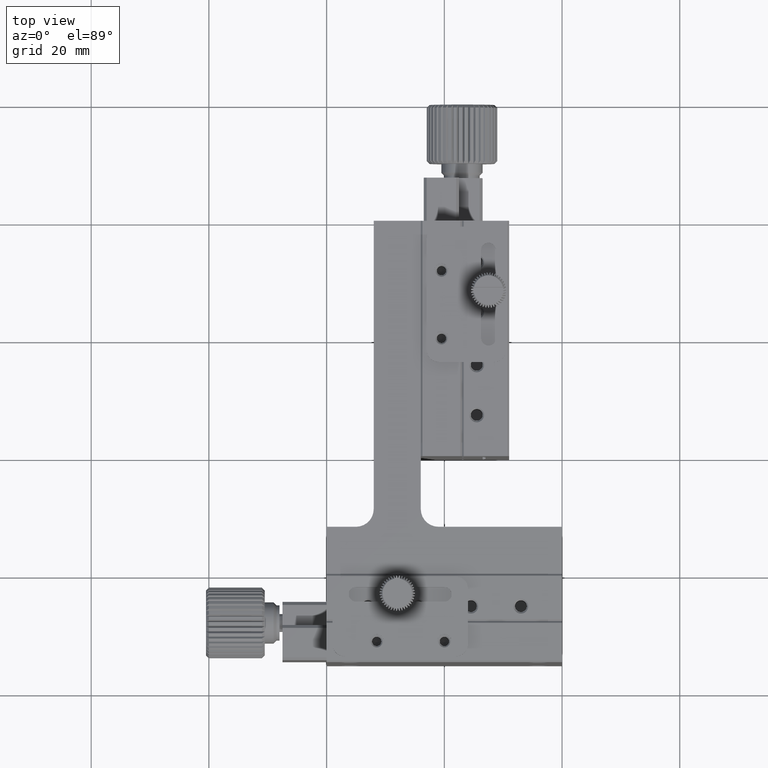
[diagram: clean part render]
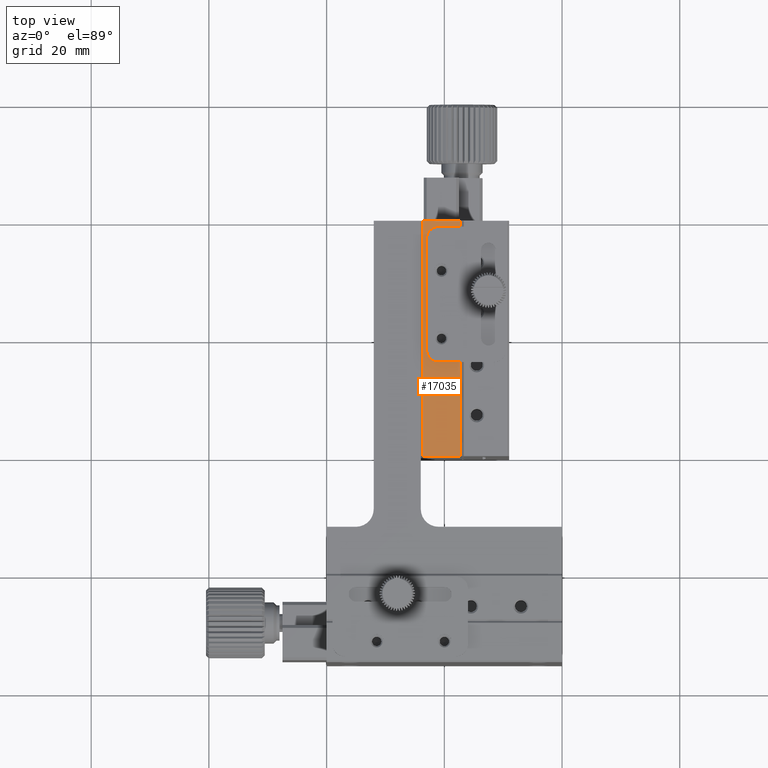
[diagram: same view with one face highlighted and labeled with its STEP entity id]
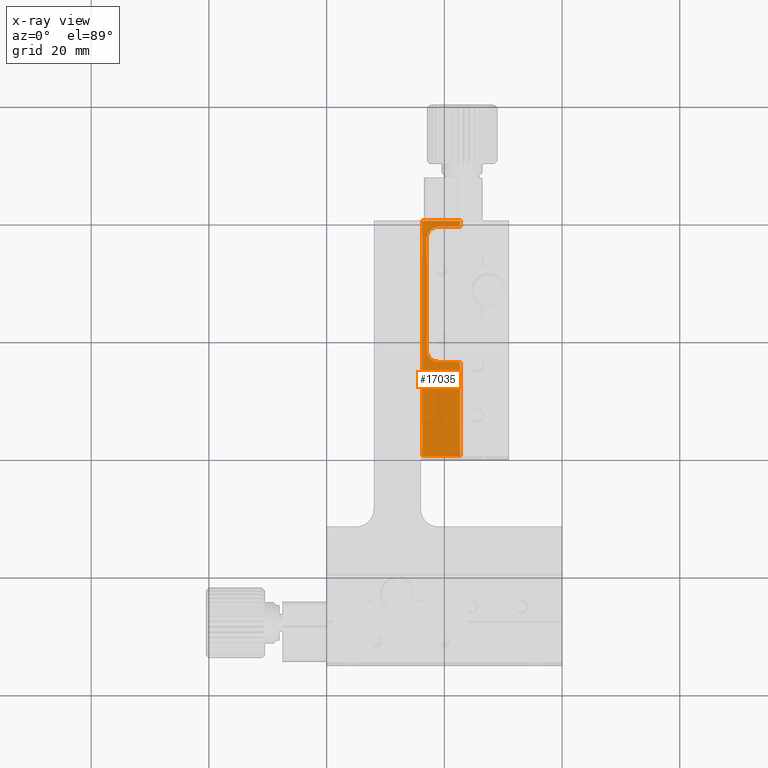
[diagram: x-ray of the same camera — body ghosted, the highlighted face saturated]
A machine part, top view. The second image highlights one B-rep face of the part: STEP entity #17035.
The next image is the same camera in x-ray: the body ghosted, the highlighted face saturated — about 0% of this face is hidden behind the body in this view.
In plain terms, the highlighted planar face has unit normal (0, 0, -1).
Its self-contained STEP definition (entity closure, byte-faithful):
#52 = CARTESIAN_POINT ( 'NONE',  ( 16.30000000000001137, 60.00000000000000000, 1.910944191179141280E-14 ) ) ;
#102 = VECTOR ( 'NONE', #25899, 1000.000000000000000 ) ;
#323 = DIRECTION ( 'NONE',  ( -0.000000000000000000, -0.000000000000000000, 1.000000000000000000 ) ) ;
#1164 = ORIENTED_EDGE ( 'NONE', *, *, #9105, .T. ) ;
#2479 = VERTEX_POINT ( 'NONE', #23871 ) ;
#2694 = CARTESIAN_POINT ( 'NONE',  ( 19.00000000000000000, 38.00000000000000000, 4.898587196589409870E-15 ) ) ;
#3301 = ORIENTED_EDGE ( 'NONE', *, *, #22542, .F. ) ;
#3724 = CARTESIAN_POINT ( 'NONE',  ( 22.70000000000001705, 59.00000000000000000, 1.910944191179141280E-14 ) ) ;
#3852 = CARTESIAN_POINT ( 'NONE',  ( 22.70000000000001705, 19.99999999999999645, 1.910944191179141280E-14 ) ) ;
#4031 = DIRECTION ( 'NONE',  ( -0.000000000000000000, -1.000000000000000000, -0.000000000000000000 ) ) ;
#4884 = ORIENTED_EDGE ( 'NONE', *, *, #15900, .F. ) ;
#5328 = VECTOR ( 'NONE', #15481, 1000.000000000000000 ) ;
#5621 = DIRECTION ( 'NONE',  ( -1.000000000000000000, -0.000000000000000000, -0.000000000000000000 ) ) ;
#5650 = VECTOR ( 'NONE', #5621, 1000.000000000000000 ) ;
#5998 = CARTESIAN_POINT ( 'NONE',  ( 22.70000000000001705, 36.00000000000000000, 1.910944191179141280E-14 ) ) ;
#6469 = ORIENTED_EDGE ( 'NONE', *, *, #6598, .F. ) ;
#6598 = EDGE_CURVE ( 'NONE', #25263, #22472, #14132, .T. ) ;
#7026 = CIRCLE ( 'NONE', #27158, 2.000000000000001776 ) ;
#7237 = EDGE_CURVE ( 'NONE', #23311, #25856, #33121, .T. ) ;
#7846 = EDGE_LOOP ( 'NONE', ( #34790, #25389, #1164, #32186, #4884, #6469, #21227, #32664, #3301, #23358 ) ) ;
#9105 = EDGE_CURVE ( 'NONE', #28064, #15677, #18677, .T. ) ;
#10370 = DIRECTION ( 'NONE',  ( -1.000000000000000000, -0.000000000000000000, -0.000000000000000000 ) ) ;
#10407 = VECTOR ( 'NONE', #27945, 1000.000000000000000 ) ;
#10878 = CARTESIAN_POINT ( 'NONE',  ( 22.70000000000001705, 59.00000000000000000, 1.842596086225655396E-14 ) ) ;
#10969 = PLANE ( 'NONE',  #12795 ) ;
#11142 = DIRECTION ( 'NONE',  ( 0.000000000000000000, 1.000000000000000000, 0.000000000000000000 ) ) ;
#11586 = LINE ( 'NONE', #30446, #10407 ) ;
#12758 = CARTESIAN_POINT ( 'NONE',  ( 16.30000000000001137, 19.99999999999999645, 1.910944191179141280E-14 ) ) ;
#12795 = AXIS2_PLACEMENT_3D ( 'NONE', #13679, #16566, #13302 ) ;
#13302 = DIRECTION ( 'NONE',  ( 0.000000000000000000, 1.000000000000000000, 0.000000000000000000 ) ) ;
#13540 = DIRECTION ( 'NONE',  ( -0.000000000000000000, 1.000000000000000000, -0.000000000000000000 ) ) ;
#13679 = CARTESIAN_POINT ( 'NONE',  ( 22.70000000000001705, 19.99999999999999645, 1.910944191179141280E-14 ) ) ;
#14132 = LINE ( 'NONE', #5998, #16748 ) ;
#15481 = DIRECTION ( 'NONE',  ( 0.000000000000000000, -1.000000000000000000, 0.000000000000000000 ) ) ;
#15677 = VERTEX_POINT ( 'NONE', #34837 ) ;
#15686 = EDGE_CURVE ( 'NONE', #18425, #15677, #18653, .T. ) ;
#15900 = EDGE_CURVE ( 'NONE', #22472, #18425, #23008, .T. ) ;
#16320 = VERTEX_POINT ( 'NONE', #34034 ) ;
#16566 = DIRECTION ( 'NONE',  ( 0.000000000000000000, 0.000000000000000000, -1.000000000000000000 ) ) ;
#16748 = VECTOR ( 'NONE', #30470, 1000.000000000000000 ) ;
#17035 = ADVANCED_FACE ( 'NONE', ( #18885 ), #10969, .F. ) ;
#18425 = VERTEX_POINT ( 'NONE', #34843 ) ;
#18511 = CARTESIAN_POINT ( 'NONE',  ( 19.00000000000000000, 36.00000000000000000, 1.200206299027993703E-14 ) ) ;
#18653 = LINE ( 'NONE', #21554, #22552 ) ;
#18677 = LINE ( 'NONE', #12758, #5328 ) ;
#18885 = FACE_OUTER_BOUND ( 'NONE', #7846, .T. ) ;
#19067 = VECTOR ( 'NONE', #13540, 1000.000000000000000 ) ;
#20717 = EDGE_CURVE ( 'NONE', #23311, #25845, #33591, .T. ) ;
#21227 = ORIENTED_EDGE ( 'NONE', *, *, #30238, .F. ) ;
#21554 = CARTESIAN_POINT ( 'NONE',  ( 16.00000000000000000, 19.99999999999999645, 1.910944191179141280E-14 ) ) ;
#22010 = DIRECTION ( 'NONE',  ( -0.000000000000000000, -0.000000000000000000, 1.000000000000000000 ) ) ;
#22472 = VERTEX_POINT ( 'NONE', #32880 ) ;
#22542 = EDGE_CURVE ( 'NONE', #25845, #2479, #26677, .T. ) ;
#22552 = VECTOR ( 'NONE', #10370, 1000.000000000000000 ) ;
#22570 = CARTESIAN_POINT ( 'NONE',  ( 22.70000000000001705, 19.99999999999999645, 1.774638294054263662E-14 ) ) ;
#23008 = LINE ( 'NONE', #3852, #29377 ) ;
#23311 = VERTEX_POINT ( 'NONE', #10878 ) ;
#23358 = ORIENTED_EDGE ( 'NONE', *, *, #20717, .F. ) ;
#23871 = CARTESIAN_POINT ( 'NONE',  ( 17.00000000000000000, 56.99999999999999289, 1.200206299027993703E-14 ) ) ;
#24510 = DIRECTION ( 'NONE',  ( 0.000000000000000000, 1.000000000000000000, 0.000000000000000000 ) ) ;
#24742 = CARTESIAN_POINT ( 'NONE',  ( 16.00000000000000000, 60.00000000000000000, 1.910944191179141280E-14 ) ) ;
#25263 = VERTEX_POINT ( 'NONE', #18511 ) ;
#25389 = ORIENTED_EDGE ( 'NONE', *, *, #25656, .T. ) ;
#25656 = EDGE_CURVE ( 'NONE', #25856, #28064, #30272, .T. ) ;
#25845 = VERTEX_POINT ( 'NONE', #34211 ) ;
#25856 = VERTEX_POINT ( 'NONE', #28668 ) ;
#25899 = DIRECTION ( 'NONE',  ( -1.000000000000000000, -0.000000000000000000, -0.000000000000000000 ) ) ;
#26677 = CIRCLE ( 'NONE', #27271, 2.000000000000001776 ) ;
#27158 = AXIS2_PLACEMENT_3D ( 'NONE', #2694, #22010, #24510 ) ;
#27271 = AXIS2_PLACEMENT_3D ( 'NONE', #28050, #323, #11142 ) ;
#27945 = DIRECTION ( 'NONE',  ( -0.000000000000000000, -1.000000000000000000, -0.000000000000000000 ) ) ;
#28050 = CARTESIAN_POINT ( 'NONE',  ( 19.00000000000000000, 56.99999999999999289, 4.898587196589409870E-15 ) ) ;
#28064 = VERTEX_POINT ( 'NONE', #52 ) ;
#28195 = EDGE_CURVE ( 'NONE', #2479, #16320, #11586, .T. ) ;
#28668 = CARTESIAN_POINT ( 'NONE',  ( 22.70000000000001705, 60.00000000000000000, 1.774638294054263662E-14 ) ) ;
#29377 = VECTOR ( 'NONE', #4031, 1000.000000000000000 ) ;
#30238 = EDGE_CURVE ( 'NONE', #16320, #25263, #7026, .T. ) ;
#30272 = LINE ( 'NONE', #24742, #5650 ) ;
#30446 = CARTESIAN_POINT ( 'NONE',  ( 17.00000000000000000, 19.99999999999999645, 1.910944191179141280E-14 ) ) ;
#30470 = DIRECTION ( 'NONE',  ( 1.000000000000000000, 0.000000000000000000, 0.000000000000000000 ) ) ;
#32186 = ORIENTED_EDGE ( 'NONE', *, *, #15686, .F. ) ;
#32664 = ORIENTED_EDGE ( 'NONE', *, *, #28195, .F. ) ;
#32880 = CARTESIAN_POINT ( 'NONE',  ( 22.70000000000001705, 36.00000000000000000, 1.521596349017871783E-14 ) ) ;
#33121 = LINE ( 'NONE', #22570, #19067 ) ;
#33591 = LINE ( 'NONE', #3724, #102 ) ;
#34034 = CARTESIAN_POINT ( 'NONE',  ( 17.00000000000000000, 38.00000000000000000, 1.200206299027993703E-14 ) ) ;
#34211 = CARTESIAN_POINT ( 'NONE',  ( 19.00000000000000000, 59.00000000000000000, 1.200206299027993703E-14 ) ) ;
#34790 = ORIENTED_EDGE ( 'NONE', *, *, #7237, .T. ) ;
#34837 = CARTESIAN_POINT ( 'NONE',  ( 16.30000000000001137, 19.99999999999999645, 1.910944191179141280E-14 ) ) ;
#34843 = CARTESIAN_POINT ( 'NONE',  ( 22.70000000000001705, 19.99999999999999645, 1.835239774485340617E-14 ) ) ;